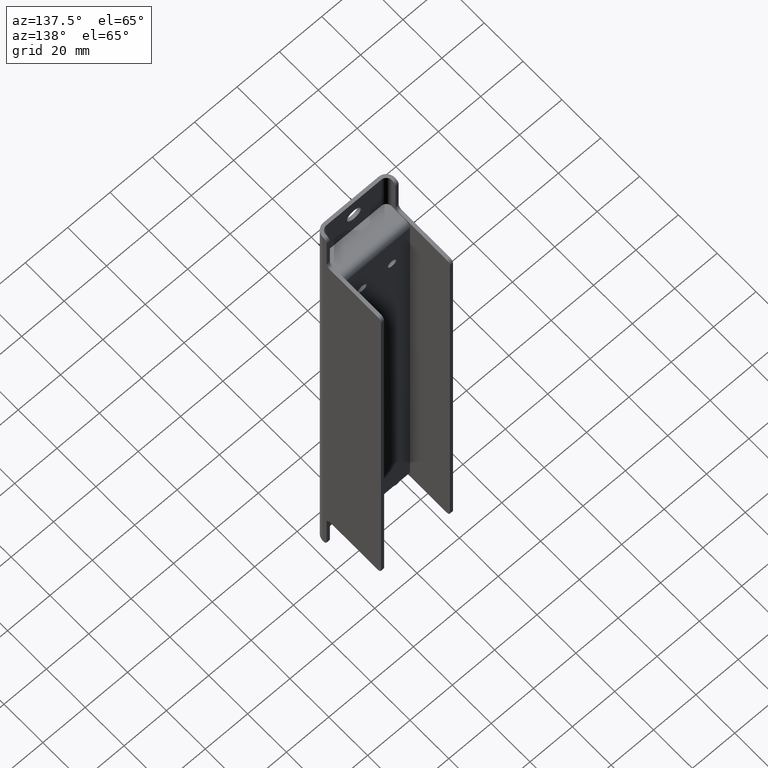
[diagram: clean part render]
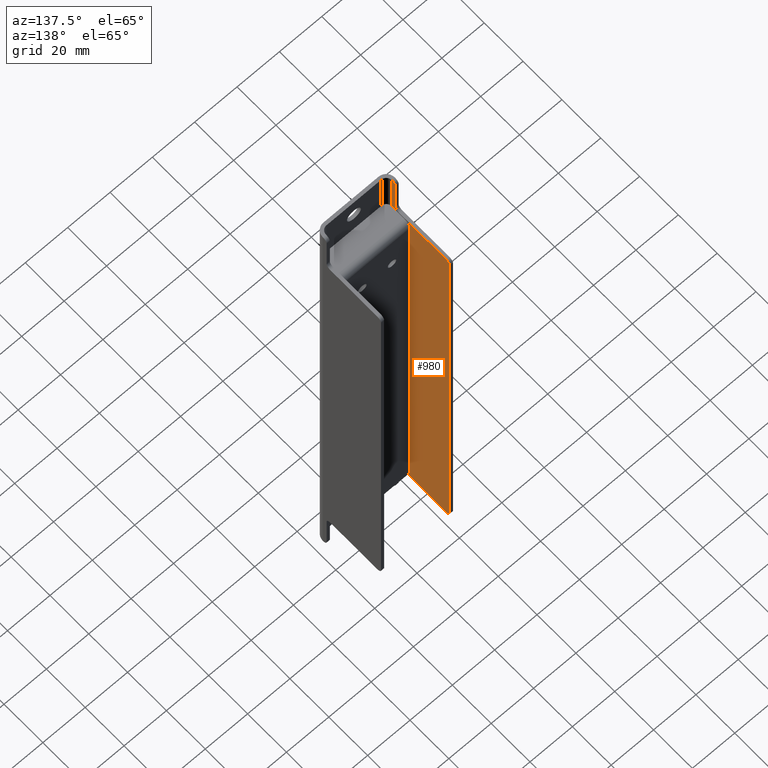
[diagram: same view with one face highlighted and labeled with its STEP entity id]
A machine part, auxiliary view. The second image highlights one B-rep face of the part: STEP entity #980.
In plain terms, the highlighted planar face has unit normal (-1, -0, 0).
Its self-contained STEP definition (entity closure, byte-faithful):
#66=CIRCLE('',#1069,3.);
#67=CIRCLE('',#1070,3.);
#68=CIRCLE('',#1071,2.);
#69=CIRCLE('',#1072,2.);
#70=CIRCLE('',#1073,2.);
#71=CIRCLE('',#1074,2.);
#72=CIRCLE('',#1075,2.);
#73=CIRCLE('',#1076,2.);
#154=ORIENTED_EDGE('',*,*,#426,.F.);
#155=ORIENTED_EDGE('',*,*,#440,.T.);
#156=ORIENTED_EDGE('',*,*,#438,.F.);
#157=ORIENTED_EDGE('',*,*,#441,.T.);
#158=ORIENTED_EDGE('',*,*,#429,.F.);
#159=ORIENTED_EDGE('',*,*,#442,.F.);
#160=ORIENTED_EDGE('',*,*,#443,.T.);
#161=ORIENTED_EDGE('',*,*,#444,.T.);
#162=ORIENTED_EDGE('',*,*,#445,.T.);
#163=ORIENTED_EDGE('',*,*,#446,.T.);
#164=ORIENTED_EDGE('',*,*,#447,.T.);
#165=ORIENTED_EDGE('',*,*,#448,.T.);
#166=ORIENTED_EDGE('',*,*,#449,.T.);
#167=ORIENTED_EDGE('',*,*,#450,.T.);
#168=ORIENTED_EDGE('',*,*,#451,.T.);
#169=ORIENTED_EDGE('',*,*,#452,.T.);
#170=ORIENTED_EDGE('',*,*,#453,.T.);
#171=ORIENTED_EDGE('',*,*,#454,.F.);
#426=EDGE_CURVE('',#570,#571,#654,.T.);
#429=EDGE_CURVE('',#572,#573,#655,.T.);
#438=EDGE_CURVE('',#580,#581,#660,.T.);
#440=EDGE_CURVE('',#570,#581,#66,.T.);
#441=EDGE_CURVE('',#580,#573,#67,.T.);
#442=EDGE_CURVE('',#582,#572,#662,.T.);
#443=EDGE_CURVE('',#582,#583,#68,.T.);
#444=EDGE_CURVE('',#583,#584,#663,.T.);
#445=EDGE_CURVE('',#584,#585,#69,.T.);
#446=EDGE_CURVE('',#585,#586,#664,.T.);
#447=EDGE_CURVE('',#586,#587,#70,.T.);
#448=EDGE_CURVE('',#587,#588,#665,.T.);
#449=EDGE_CURVE('',#588,#589,#71,.T.);
#450=EDGE_CURVE('',#589,#590,#666,.T.);
#451=EDGE_CURVE('',#590,#591,#72,.T.);
#452=EDGE_CURVE('',#591,#592,#667,.T.);
#453=EDGE_CURVE('',#592,#593,#73,.T.);
#454=EDGE_CURVE('',#571,#593,#668,.T.);
#570=VERTEX_POINT('',#1546);
#571=VERTEX_POINT('',#1548);
#572=VERTEX_POINT('',#1553);
#573=VERTEX_POINT('',#1554);
#580=VERTEX_POINT('',#1570);
#581=VERTEX_POINT('',#1572);
#582=VERTEX_POINT('',#1578);
#583=VERTEX_POINT('',#1580);
#584=VERTEX_POINT('',#1582);
#585=VERTEX_POINT('',#1584);
#586=VERTEX_POINT('',#1586);
#587=VERTEX_POINT('',#1588);
#588=VERTEX_POINT('',#1590);
#589=VERTEX_POINT('',#1592);
#590=VERTEX_POINT('',#1594);
#591=VERTEX_POINT('',#1596);
#592=VERTEX_POINT('',#1598);
#593=VERTEX_POINT('',#1600);
#654=LINE('',#1547,#742);
#655=LINE('',#1552,#743);
#660=LINE('',#1571,#748);
#662=LINE('',#1577,#750);
#663=LINE('',#1581,#751);
#664=LINE('',#1585,#752);
#665=LINE('',#1589,#753);
#666=LINE('',#1593,#754);
#667=LINE('',#1597,#755);
#668=LINE('',#1601,#756);
#742=VECTOR('',#1214,1000.);
#743=VECTOR('',#1221,1000.);
#748=VECTOR('',#1236,1000.);
#750=VECTOR('',#1244,1000.);
#751=VECTOR('',#1247,1000.);
#752=VECTOR('',#1250,1000.);
#753=VECTOR('',#1253,1000.);
#754=VECTOR('',#1256,1000.);
#755=VECTOR('',#1259,1000.);
#756=VECTOR('',#1262,1000.);
#822=EDGE_LOOP('',(#154,#155,#156,#157,#158,#159,#160,#161,#162,#163,#164,
#165,#166,#167,#168,#169,#170,#171));
#890=FACE_BOUND('',#822,.T.);
#951=PLANE('',#1068);
#980=ADVANCED_FACE('',(#890),#951,.F.);
#1068=AXIS2_PLACEMENT_3D('',#1574,#1238,#1239);
#1069=AXIS2_PLACEMENT_3D('',#1575,#1240,#1241);
#1070=AXIS2_PLACEMENT_3D('',#1576,#1242,#1243);
#1071=AXIS2_PLACEMENT_3D('',#1579,#1245,#1246);
#1072=AXIS2_PLACEMENT_3D('',#1583,#1248,#1249);
#1073=AXIS2_PLACEMENT_3D('',#1587,#1251,#1252);
#1074=AXIS2_PLACEMENT_3D('',#1591,#1254,#1255);
#1075=AXIS2_PLACEMENT_3D('',#1595,#1257,#1258);
#1076=AXIS2_PLACEMENT_3D('',#1599,#1260,#1261);
#1214=DIRECTION('',(-2.40952073044229E-16,-1.,8.6117241928882E-15));
#1221=DIRECTION('',(4.06163832661068E-16,1.,1.96182842258948E-15));
#1236=DIRECTION('',(1.21257418434899E-16,3.32494788514936E-15,1.));
#1238=DIRECTION('',(-1.,-3.10099449920508E-15,3.32185076179632E-17));
#1239=DIRECTION('',(3.10099449920508E-15,-1.,-1.66533453693773E-16));
#1240=DIRECTION('',(-1.,-3.10099449920508E-15,3.32185076179632E-17));
#1241=DIRECTION('',(3.10099449920508E-15,-1.,0.));
#1242=DIRECTION('',(-1.,-3.10099449920508E-15,3.32185076179632E-17));
#1243=DIRECTION('',(3.10099449920508E-15,-1.,0.));
#1244=DIRECTION('',(3.32185076179638E-17,-1.43403807347416E-16,1.));
#1245=DIRECTION('',(1.,3.10099449920508E-15,-3.32185076179632E-17));
#1246=DIRECTION('',(3.06328311929254E-15,-1.,-1.66533453693773E-16));
#1247=DIRECTION('',(3.32185076179638E-17,-1.66533453693773E-16,1.));
#1248=DIRECTION('',(-1.,-3.10099449920508E-15,3.32185076179632E-17));
#1249=DIRECTION('',(3.06328311929254E-15,-1.,-1.66533453693773E-16));
#1250=DIRECTION('',(-3.10099449920508E-15,1.,1.66533453693773E-16));
#1251=DIRECTION('',(1.,3.10099449920508E-15,-3.32185076179632E-17));
#1252=DIRECTION('',(3.06328311929254E-15,-1.,-1.66533453693773E-16));
#1253=DIRECTION('',(3.32185076179638E-17,-1.66533453693773E-16,1.));
#1254=DIRECTION('',(1.,3.10099449920508E-15,-3.32185076179632E-17));
#1255=DIRECTION('',(3.06328311929255E-15,-1.,-1.66533453693773E-16));
#1256=DIRECTION('',(3.10099449920508E-15,-1.,-1.66533453693773E-16));
#1257=DIRECTION('',(-1.,-3.10099449920508E-15,3.32185076179632E-17));
#1258=DIRECTION('',(3.06328311929254E-15,-1.,-1.66533453693773E-16));
#1259=DIRECTION('',(3.32185076179639E-17,-4.2624633981144E-17,1.));
#1260=DIRECTION('',(1.,3.10099449920508E-15,-3.32185076179632E-17));
#1261=DIRECTION('',(3.06328311929254E-15,-1.,-1.66533453693773E-16));
#1262=DIRECTION('',(3.32185076179638E-17,-1.43403807347416E-16,1.));
#1546=CARTESIAN_POINT('',(-15.4999999999999,-23.5130367319009,103.5));
#1547=CARTESIAN_POINT('',(-15.4999999999998,-20.5130367318991,103.5));
#1548=CARTESIAN_POINT('',(-15.4999999999998,-30.0130367319026,103.5));
#1552=CARTESIAN_POINT('',(-15.4999999999999,-20.5130367318986,-103.5));
#1553=CARTESIAN_POINT('',(-15.4999999999998,-30.0130367319026,-103.5));
#1554=CARTESIAN_POINT('',(-15.4999999999999,-23.5130367319017,-103.5));
#1570=CARTESIAN_POINT('',(-15.4999999999999,-20.5130367319017,-100.5));
#1571=CARTESIAN_POINT('',(-15.4999999999998,-20.5130367319002,350.5));
#1572=CARTESIAN_POINT('',(-15.4999999999999,-20.513036731901,100.5));
#1574=CARTESIAN_POINT('',(-15.4999999999999,-32.5130367319027,-3.99145863061223E-15));
#1575=CARTESIAN_POINT('',(-15.4999999999999,-23.513036731901,100.5));
#1576=CARTESIAN_POINT('',(-15.4999999999999,-23.5130367319017,-100.5));
#1577=CARTESIAN_POINT('',(-15.4999999999998,-30.0130367319026,-375.));
#1578=CARTESIAN_POINT('',(-15.4999999999999,-30.0130367319026,-125.));
#1579=CARTESIAN_POINT('',(-15.4999999999998,-30.0130367319026,-123.));
#1580=CARTESIAN_POINT('',(-15.4999999999999,-28.0130367319026,-123.));
#1581=CARTESIAN_POINT('',(-15.4999999999999,-28.0130367319027,125.));
#1582=CARTESIAN_POINT('',(-15.4999999999998,-28.0130367319026,-106.));
#1583=CARTESIAN_POINT('',(-15.4999999999999,-26.0130367319026,-106.));
#1584=CARTESIAN_POINT('',(-15.4999999999999,-26.0130367319026,-104.));
#1585=CARTESIAN_POINT('',(-15.4999999999998,-32.5130367319026,-104.));
#1586=CARTESIAN_POINT('',(-15.4999999999999,-2.01303673190266,-104.));
#1587=CARTESIAN_POINT('',(-15.5000000000001,-2.01303673190272,-102.));
#1588=CARTESIAN_POINT('',(-15.5000000000001,-0.0130367319027217,-102.));
#1589=CARTESIAN_POINT('',(-15.5000000000002,-0.0130367319027391,-1.61189195655466E-16));
#1590=CARTESIAN_POINT('',(-15.5000000000001,-0.0130367319027564,102.));
#1591=CARTESIAN_POINT('',(-15.5000000000001,-2.01303673190275,102.));
#1592=CARTESIAN_POINT('',(-15.5000000000001,-2.01303673190275,104.));
#1593=CARTESIAN_POINT('',(-15.4999999999998,-32.5130367319027,104.));
#1594=CARTESIAN_POINT('',(-15.4999999999999,-26.0130367319026,104.));
#1595=CARTESIAN_POINT('',(-15.4999999999999,-26.0130367319026,106.));
#1596=CARTESIAN_POINT('',(-15.4999999999999,-28.0130367319026,106.));
#1597=CARTESIAN_POINT('',(-15.4999999999999,-28.0130367319027,-125.));
#1598=CARTESIAN_POINT('',(-15.4999999999999,-28.0130367319027,123.));
#1599=CARTESIAN_POINT('',(-15.4999999999999,-30.0130367319026,123.));
#1600=CARTESIAN_POINT('',(-15.4999999999998,-30.0130367319026,125.));
#1601=CARTESIAN_POINT('',(-15.4999999999998,-30.0130367319026,-375.));